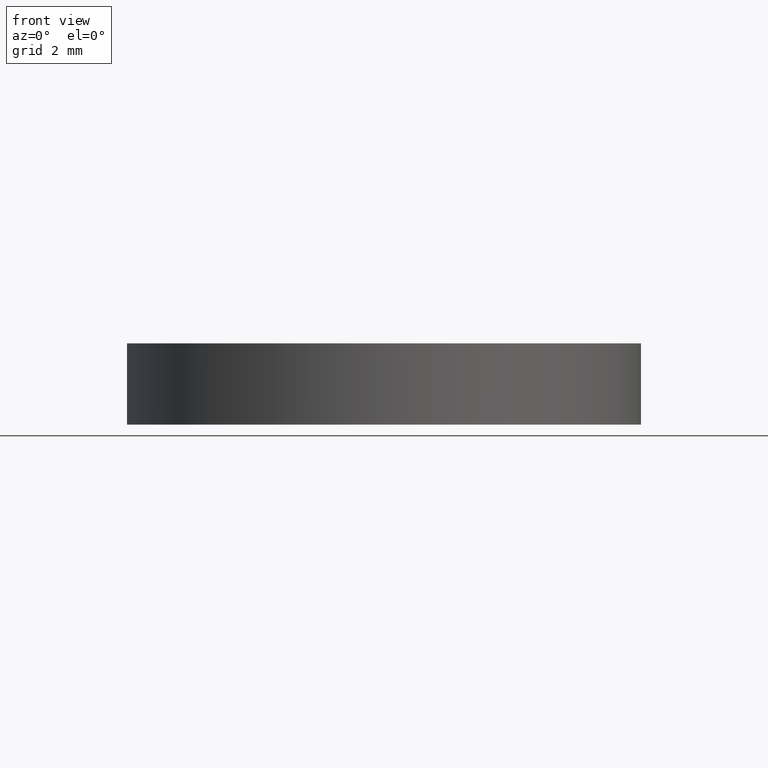
[diagram: clean part render]
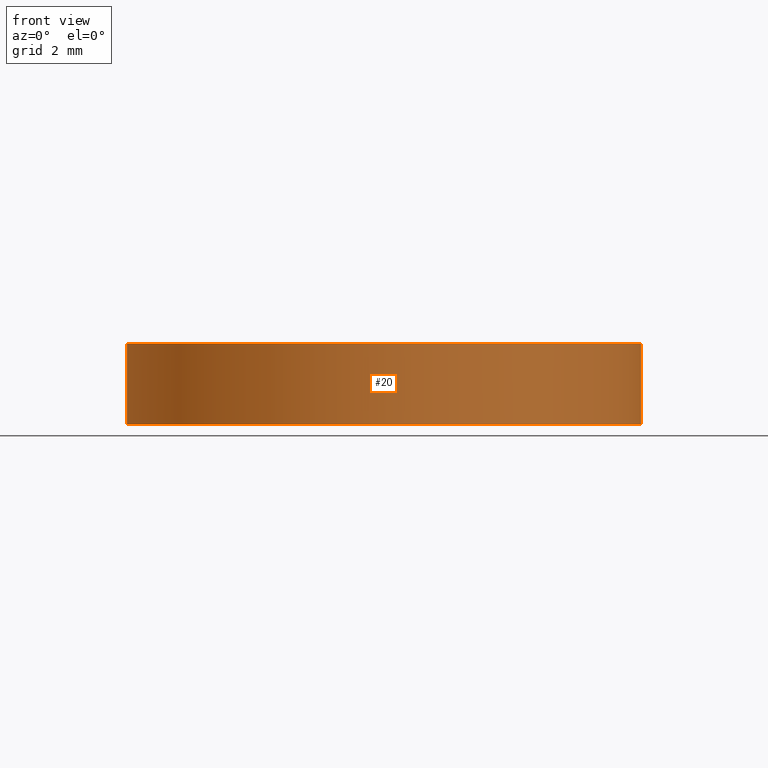
[diagram: same view with one face highlighted and labeled with its STEP entity id]
A machine part, front view. The second image highlights one B-rep face of the part: STEP entity #20.
In plain terms, the highlighted cylindrical surface (partial cylindrical patch) has radius 6.35 mm, axis along (0, 0, 1).
Its self-contained STEP definition (entity closure, byte-faithful):
#1 = DIRECTION ( 'NONE',  ( 1.000000000000000000, 0.0000000000000000000, 0.0000000000000000000 ) ) ;
#13 = LINE ( 'NONE', #23, #89 ) ;
#18 = ORIENTED_EDGE ( 'NONE', *, *, #113, .T. ) ;
#20 = ADVANCED_FACE ( 'NONE', ( #30 ), #255, .T. ) ;
#23 = CARTESIAN_POINT ( 'NONE',  ( -6.349999999999999600, 1.998896044546239400E-015, -0.1551791560402660000 ) ) ;
#26 = CARTESIAN_POINT ( 'NONE',  ( -1.036413357444679200E-014, -6.350000000000348700, 1.855179156040272800 ) ) ;
#27 = CIRCLE ( 'NONE', #48, 6.349999999999999600 ) ;
#30 = FACE_OUTER_BOUND ( 'NONE', #195, .T. ) ;
#32 = CIRCLE ( 'NONE', #293, 6.349999999999999600 ) ;
#36 = CARTESIAN_POINT ( 'NONE',  ( 2.498001805406600200E-016, 1.221245327087670000E-015, 1.855179156040269700 ) ) ;
#39 = CARTESIAN_POINT ( 'NONE',  ( 2.498001805406600200E-016, 1.221245327087670000E-015, -0.1551791560402660000 ) ) ;
#41 = EDGE_CURVE ( 'NONE', #138, #204, #13, .T. ) ;
#44 = ORIENTED_EDGE ( 'NONE', *, *, #85, .T. ) ;
#48 = AXIS2_PLACEMENT_3D ( 'NONE', #84, #256, #109 ) ;
#57 = VERTEX_POINT ( 'NONE', #26 ) ;
#65 = CARTESIAN_POINT ( 'NONE',  ( 6.349999999999999600, 1.221245327087670000E-015, 1.855179156040269700 ) ) ;
#71 = EDGE_CURVE ( 'NONE', #188, #57, #27, .T. ) ;
#74 = DIRECTION ( 'NONE',  ( 1.000000000000000000, 0.0000000000000000000, 0.0000000000000000000 ) ) ;
#80 = CIRCLE ( 'NONE', #152, 6.349999999999999600 ) ;
#84 = CARTESIAN_POINT ( 'NONE',  ( 2.498001805406600200E-016, 1.221245327087670000E-015, 1.855179156040269700 ) ) ;
#85 = EDGE_CURVE ( 'NONE', #98, #225, #279, .T. ) ;
#88 = DIRECTION ( 'NONE',  ( 1.000000000000000000, 0.0000000000000000000, 0.0000000000000000000 ) ) ;
#89 = VECTOR ( 'NONE', #165, 1000.000000000000000 ) ;
#98 = VERTEX_POINT ( 'NONE', #242 ) ;
#100 = DIRECTION ( 'NONE',  ( -0.0000000000000000000, -0.0000000000000000000, -1.000000000000000000 ) ) ;
#109 = DIRECTION ( 'NONE',  ( 1.000000000000000000, 0.0000000000000000000, 0.0000000000000000000 ) ) ;
#110 = ORIENTED_EDGE ( 'NONE', *, *, #196, .T. ) ;
#112 = DIRECTION ( 'NONE',  ( 0.0000000000000000000, 0.0000000000000000000, 1.000000000000000000 ) ) ;
#113 = EDGE_CURVE ( 'NONE', #225, #188, #221, .T. ) ;
#116 = CARTESIAN_POINT ( 'NONE',  ( 6.349999999999999600, 1.221245327087670000E-015, -0.1551791560402660000 ) ) ;
#135 = AXIS2_PLACEMENT_3D ( 'NONE', #254, #112, #1 ) ;
#138 = VERTEX_POINT ( 'NONE', #140 ) ;
#140 = CARTESIAN_POINT ( 'NONE',  ( -6.349999999999999600, 1.998896044546239400E-015, -0.1551791560402660000 ) ) ;
#143 = CARTESIAN_POINT ( 'NONE',  ( 2.498001805406600200E-016, 1.221245327087670000E-015, -0.1551791560402660000 ) ) ;
#152 = AXIS2_PLACEMENT_3D ( 'NONE', #36, #100, #74 ) ;
#165 = DIRECTION ( 'NONE',  ( 0.0000000000000000000, 0.0000000000000000000, 1.000000000000000000 ) ) ;
#170 = DIRECTION ( 'NONE',  ( 0.0000000000000000000, 0.0000000000000000000, 1.000000000000000000 ) ) ;
#176 = CARTESIAN_POINT ( 'NONE',  ( 6.349999999999999600, 1.221245327087670000E-015, -0.1551791560402660000 ) ) ;
#188 = VERTEX_POINT ( 'NONE', #65 ) ;
#189 = DIRECTION ( 'NONE',  ( 0.0000000000000000000, 0.0000000000000000000, 1.000000000000000000 ) ) ;
#195 = EDGE_LOOP ( 'NONE', ( #235, #257, #44, #18, #231, #110 ) ) ;
#196 = EDGE_CURVE ( 'NONE', #57, #204, #80, .T. ) ;
#200 = CARTESIAN_POINT ( 'NONE',  ( -6.349999999999999600, 1.998896044546239400E-015, 1.855179156040269700 ) ) ;
#204 = VERTEX_POINT ( 'NONE', #200 ) ;
#206 = EDGE_CURVE ( 'NONE', #138, #98, #32, .T. ) ;
#216 = VECTOR ( 'NONE', #170, 1000.000000000000000 ) ;
#221 = LINE ( 'NONE', #116, #216 ) ;
#225 = VERTEX_POINT ( 'NONE', #176 ) ;
#227 = DIRECTION ( 'NONE',  ( 1.000000000000000000, 0.0000000000000000000, 0.0000000000000000000 ) ) ;
#231 = ORIENTED_EDGE ( 'NONE', *, *, #71, .T. ) ;
#235 = ORIENTED_EDGE ( 'NONE', *, *, #41, .F. ) ;
#242 = CARTESIAN_POINT ( 'NONE',  ( 1.036413357444686600E-014, -6.350000000000074300, -0.1551791560402676400 ) ) ;
#251 = DIRECTION ( 'NONE',  ( 0.0000000000000000000, 0.0000000000000000000, 1.000000000000000000 ) ) ;
#254 = CARTESIAN_POINT ( 'NONE',  ( 2.498001805406600200E-016, 1.221245327087670000E-015, -0.1551791560402660000 ) ) ;
#255 = CYLINDRICAL_SURFACE ( 'NONE', #135, 6.349999999999999600 ) ;
#256 = DIRECTION ( 'NONE',  ( -0.0000000000000000000, -0.0000000000000000000, -1.000000000000000000 ) ) ;
#257 = ORIENTED_EDGE ( 'NONE', *, *, #206, .T. ) ;
#279 = CIRCLE ( 'NONE', #290, 6.349999999999999600 ) ;
#290 = AXIS2_PLACEMENT_3D ( 'NONE', #143, #189, #88 ) ;
#293 = AXIS2_PLACEMENT_3D ( 'NONE', #39, #251, #227 ) ;